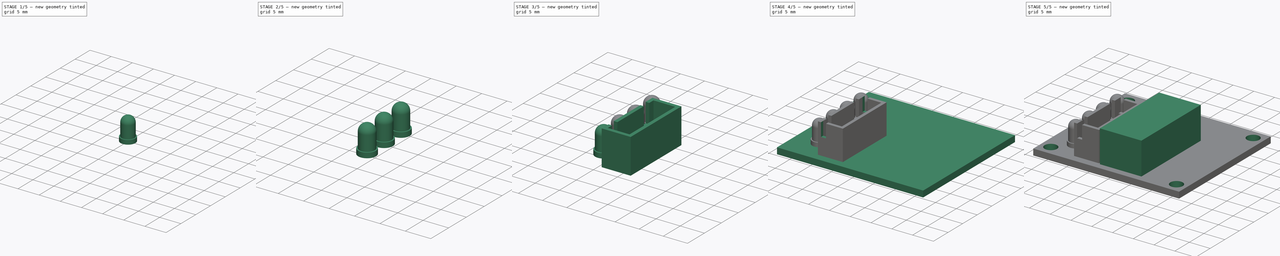
[diagram: build sequence overview — one tinted view per stage of 5, left to right]
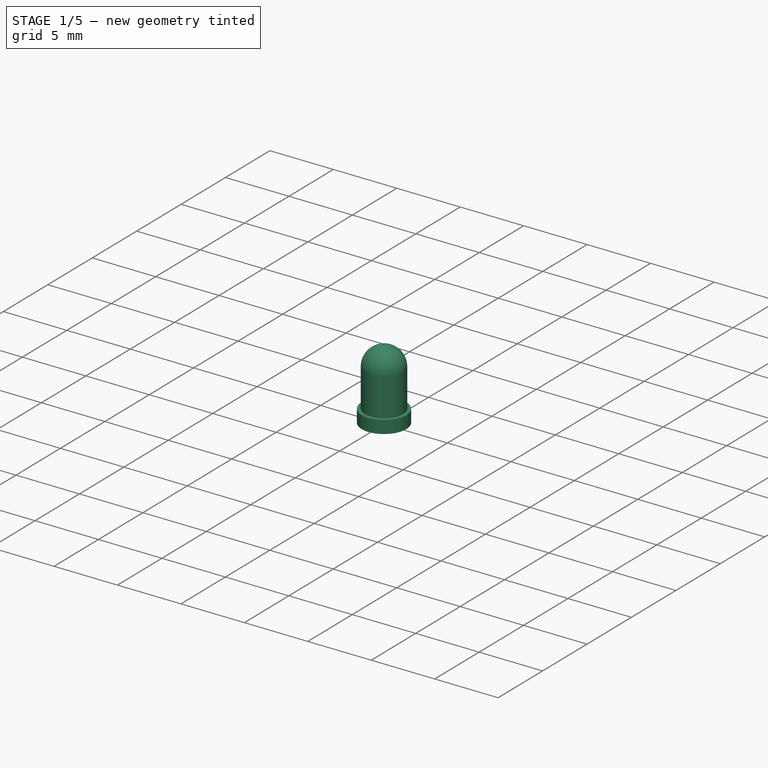
[diagram: stage 1 of 5 — iso view after this stage's code; geometry added in this stage tinted green]
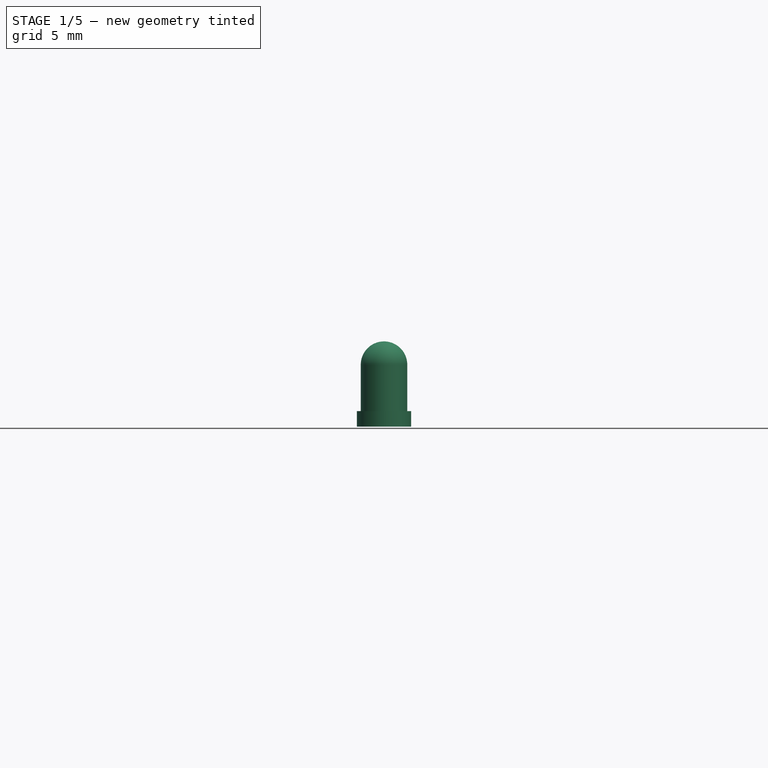
[diagram: stage 1 of 5 — front view after this stage's code; geometry added in this stage tinted green]
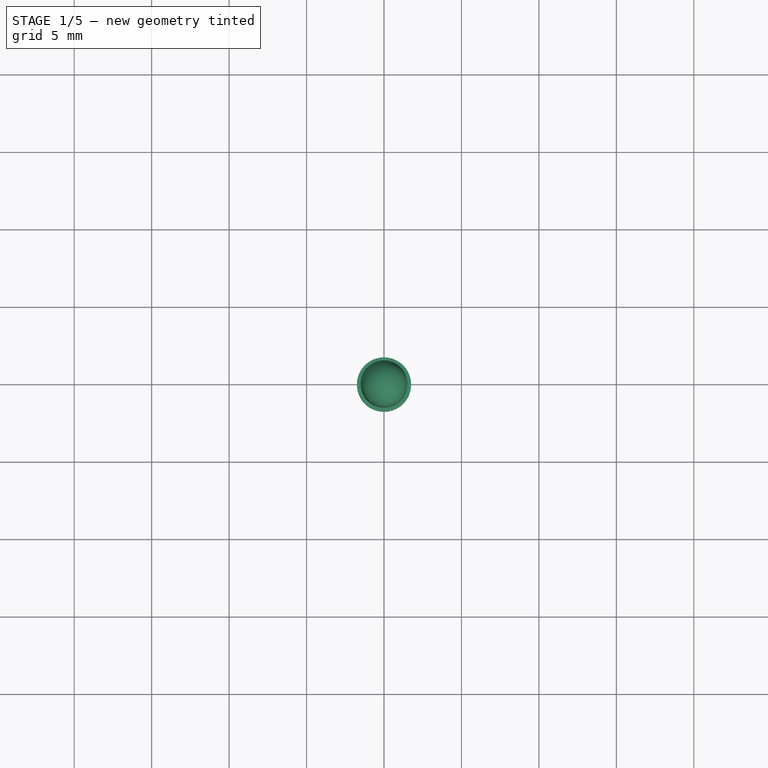
[diagram: stage 1 of 5 — top view after this stage's code; geometry added in this stage tinted green]
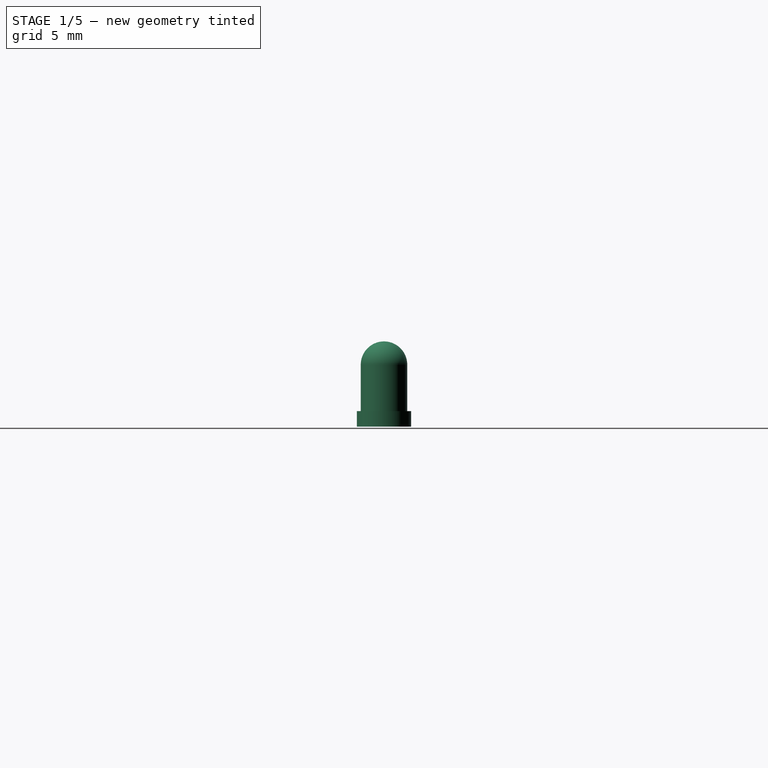
[diagram: stage 1 of 5 — right view after this stage's code; geometry added in this stage tinted green]
FCSTD DOCUMENT  (FreeCAD 0.14R3692 (Git))
Label: driver-board
License: The MIT License
LicenseURL: http://opensource.org/licenses/MIT
objects: Part::FeaturePython×6, Sketcher::SketchObject×4, PartDesign::Pocket×3, Part::Box×2, Part::Cylinder×2, Part::MultiFuse×2, PartDesign::Pad×1, Part::Sphere×1, Part::Thickness×1
note: 26 computed .brp shape members not serialized (recipe doc carries the construction recipe); baked Part::Feature solids carry a one-line shape summary decoded from their .brp

FEATURE [Part::Cylinder] Cylinder  label="led-body"
  Angle = 360
  Height = 4
  Radius = 1.5
FEATURE [Part::Cylinder] Cylinder001  label="led-base"
  Angle = 360
  Height = 1
  Radius = 1.75
FEATURE [Part::Sphere] Sphere  label="led-head"
  Angle1 = -90
  Angle2 = 90
  Angle3 = 360
  Placement = pos=(0,0,4) rot=(0,0,1;0rad)
  Radius = 1.5
FEATURE [Part::MultiFuse] Fusion  label="led"
  Shapes = -> [Sphere,Cylinder001,Cylinder]
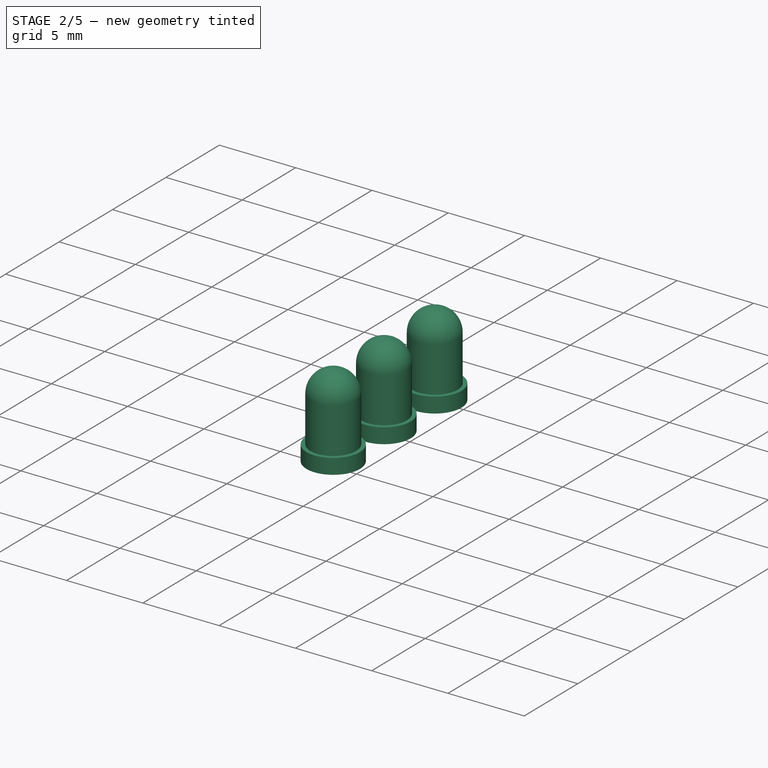
[diagram: stage 2 of 5 — iso view after this stage's code; geometry added in this stage tinted green]
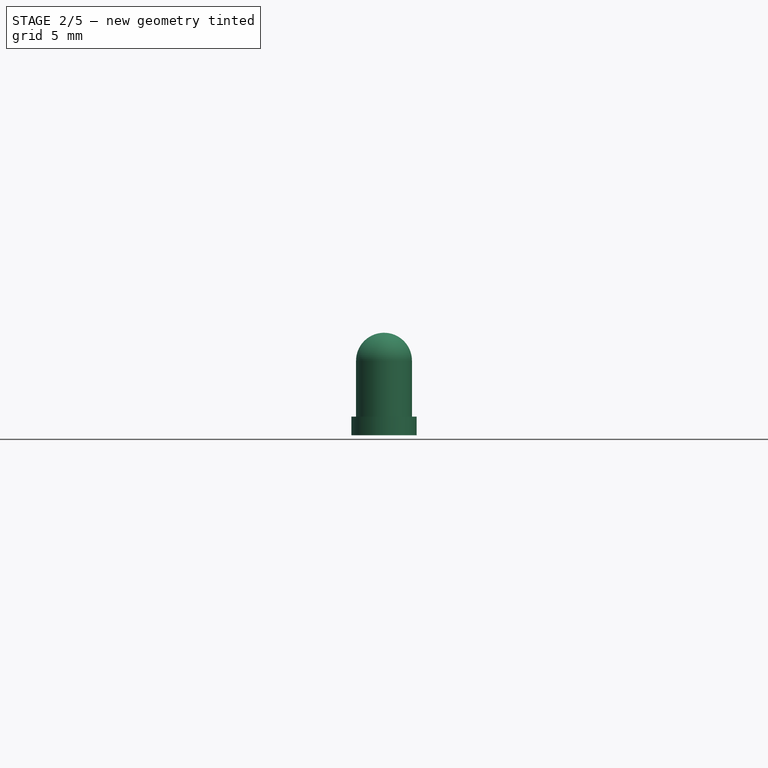
[diagram: stage 2 of 5 — front view after this stage's code; geometry added in this stage tinted green]
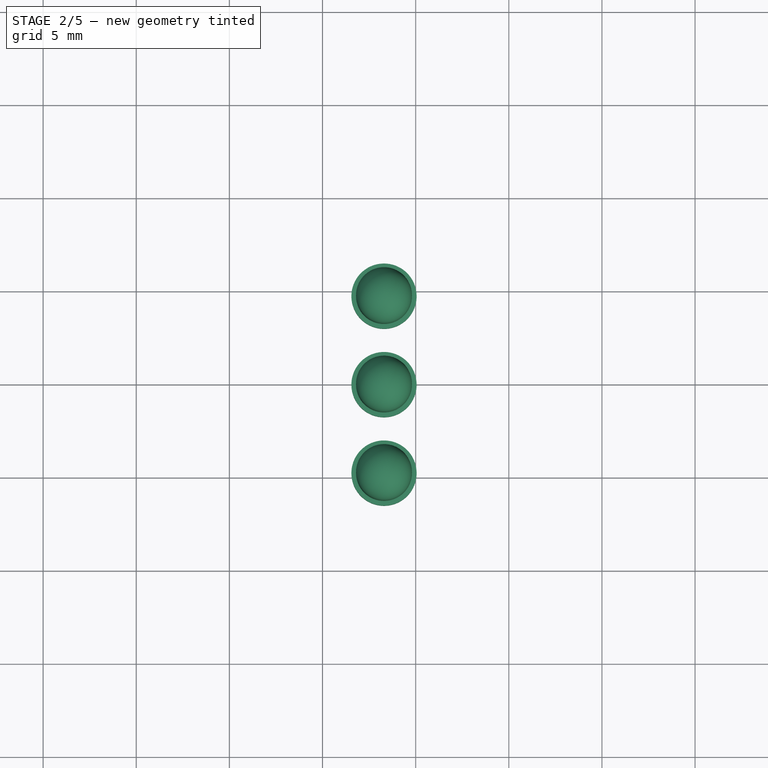
[diagram: stage 2 of 5 — top view after this stage's code; geometry added in this stage tinted green]
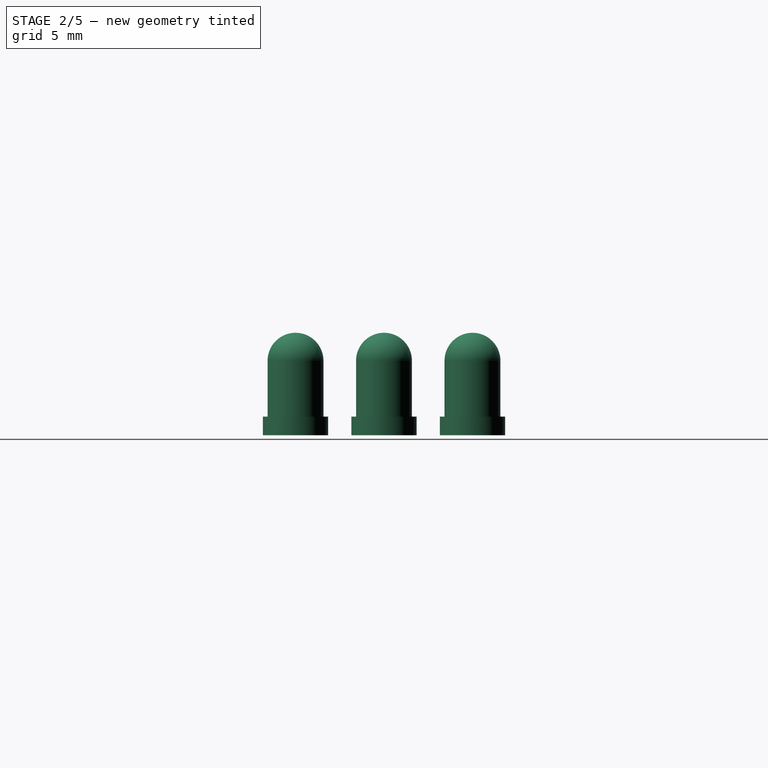
[diagram: stage 2 of 5 — right view after this stage's code; geometry added in this stage tinted green]
FEATURE [Part::FeaturePython] Clone003  label="led-2"  # Draft clone (typed FeaturePython)
  Objects = -> [Fusion]
  Placement = pos=(-11.7,-4.75,1.5) rot=(0,0,1;0rad)
  Scale = (1,1,1)
FEATURE [Part::FeaturePython] Clone004  label="led-3"  # Draft clone (typed FeaturePython)
  Objects = -> [Fusion]
  Placement = pos=(-11.7,0,1.5) rot=(0,0,1;0rad)
  Scale = (1,1,1)
FEATURE [Part::FeaturePython] Clone005  label="led-4"  # Draft clone (typed FeaturePython)
  Objects = -> [Fusion]
  Placement = pos=(-11.7,4.75,1.5) rot=(0,0,1;0rad)
  Scale = (1,1,1)
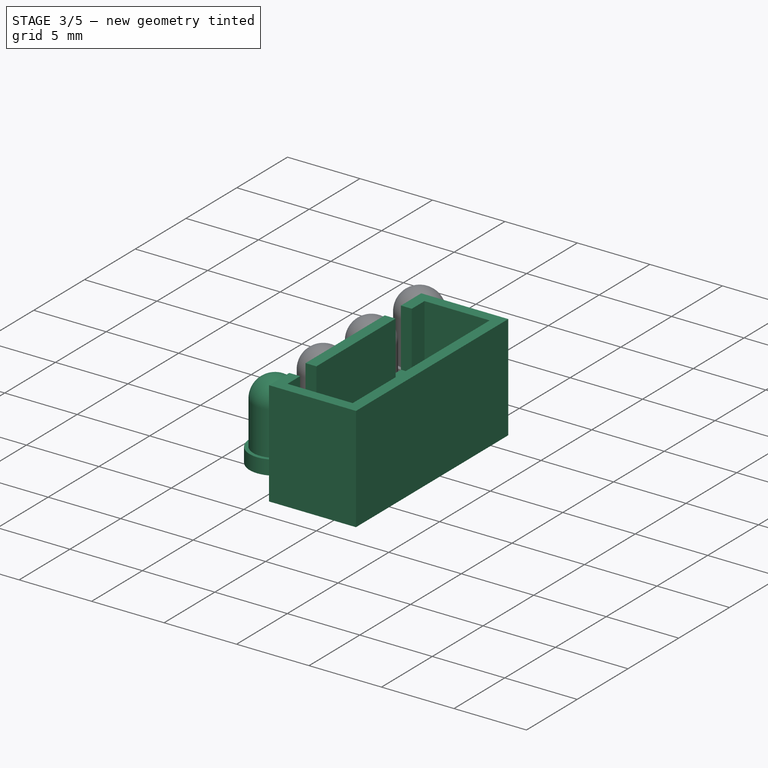
[diagram: stage 3 of 5 — iso view after this stage's code; geometry added in this stage tinted green]
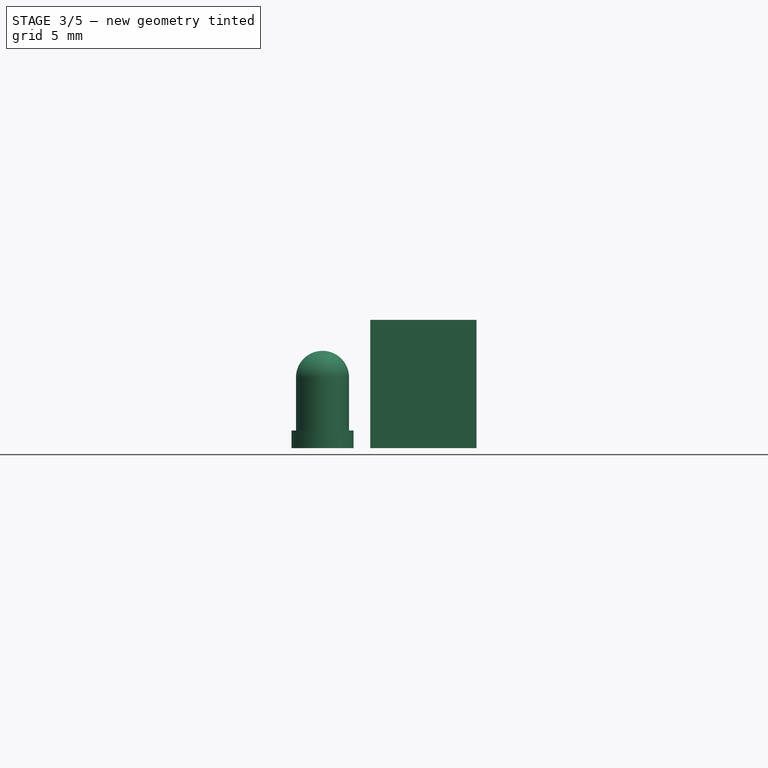
[diagram: stage 3 of 5 — front view after this stage's code; geometry added in this stage tinted green]
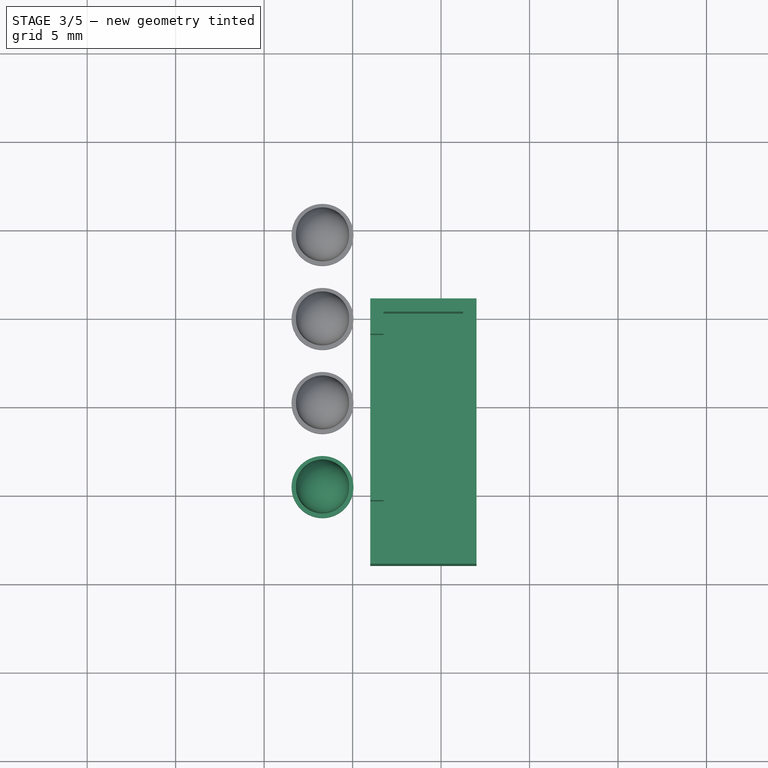
[diagram: stage 3 of 5 — top view after this stage's code; geometry added in this stage tinted green]
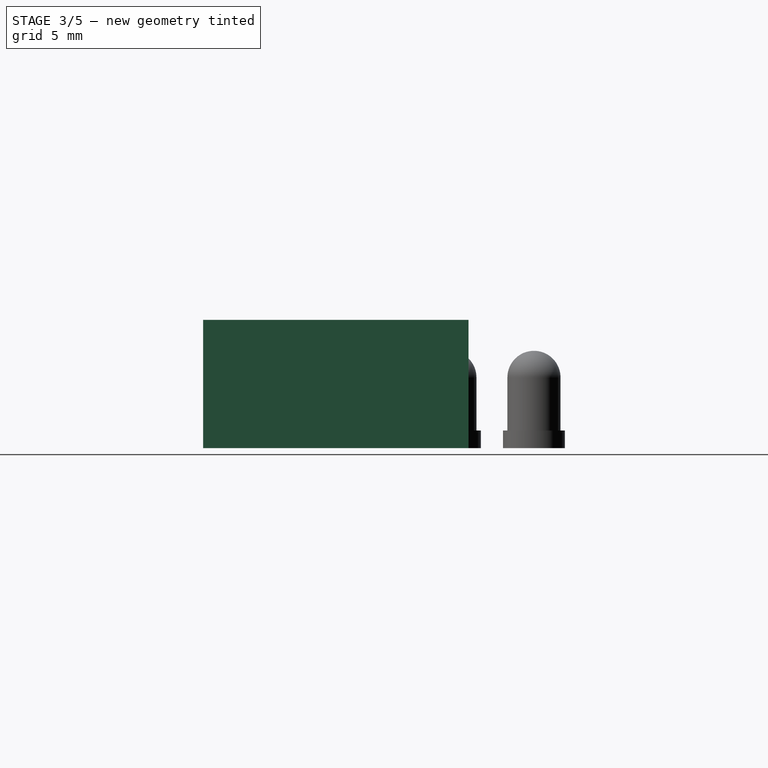
[diagram: stage 3 of 5 — right view after this stage's code; geometry added in this stage tinted green]
FEATURE [Part::Box] Box001  label="connector-cube"
  Height = 6.5
  Length = 4.5
  Placement = pos=(-8.25,-13.2,2.25) rot=(0,0,1;0rad)
  Width = 13.5
FEATURE [Part::Thickness] Thickness  label="connector-thickness"
  Faces = -> Box001 [Face6]
  Intersection = false
  Join = 2
  Mode = 0
  SelfIntersection = false
  Value = 0.75
FEATURE [Sketcher::SketchObject] Sketch002  label="connector-front-sketch"
  ExternalGeometry = -> [Thickness]
  Placement = pos=(-9,0,0) rot=(0.57735,-0.57735,-0.57735;2.0944rad)
  Support = -> Thickness [Face7]
  sketch-geometry (8):
    g0: LineSegment StartX=0.95 StartY=8.75 StartZ=0 EndX=2.55 EndY=8.75 EndZ=0
    g1: LineSegment StartX=2.55 StartY=8.75 StartZ=0 EndX=2.55 EndY=4.75 EndZ=0
    g2: LineSegment StartX=2.55 StartY=4.75 StartZ=0 EndX=0.95 EndY=4.75 EndZ=0
    g3: LineSegment StartX=0.95 StartY=4.75 StartZ=0 EndX=0.95 EndY=8.75 EndZ=0
    g4: LineSegment StartX=10.35 StartY=8.75 StartZ=0 EndX=11.95 EndY=8.75 EndZ=0
    g5: LineSegment StartX=11.95 StartY=8.75 StartZ=0 EndX=11.95 EndY=4.75 EndZ=0
    g6: LineSegment StartX=11.95 StartY=4.75 StartZ=0 EndX=10.35 EndY=4.75 EndZ=0
    g7: LineSegment StartX=10.35 StartY=4.75 StartZ=0 EndX=10.35 EndY=8.75 EndZ=0
  constraints (24):
    c: Coincident(g0,g1)
    c: Coincident(g1,g2)
    c: Coincident(g2,g3)
    c: Coincident(g3,g0)
    c: Horizontal(g0)
    c: Horizontal(g2)
    c: Vertical(g1)
    c: Vertical(g3)
    c: DistanceX(g2) = -1.6
    c: PointOnObject(g0,g-3)
    c: DistanceX(g-3,g0) = 2
    c: DistanceY(g3) = 4
    c: Coincident(g4,g5)
    c: Coincident(g5,g6)
    c: Coincident(g6,g7)
    c: Coincident(g7,g4)
    c: Horizontal(g4)
    c: Horizontal(g6)
    c: Vertical(g5)
    c: Vertical(g7)
    c: PointOnObject(g4,g-3)
    c: Equal(g5,g3)
    c: Equal(g2,g6)
    c: DistanceX(g4,g-3) = 2
FEATURE [PartDesign::Pocket] Pocket001  label="connector-front-pocket"
  Length = 5
  Sketch = -> Sketch002
  Type = 2
FEATURE [Part::FeaturePython] Clone002  label="led-1"  # Draft clone (typed FeaturePython)
  Objects = -> [Fusion]
  Placement = pos=(-11.7,-9.5,1.5) rot=(0,0,1;0rad)
  Scale = (1,1,1)
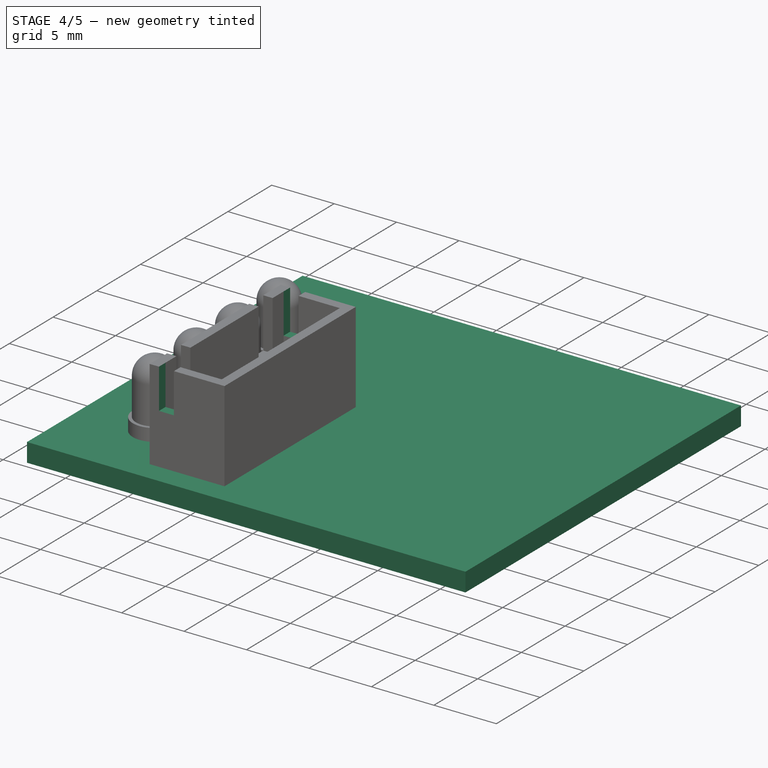
[diagram: stage 4 of 5 — iso view after this stage's code; geometry added in this stage tinted green]
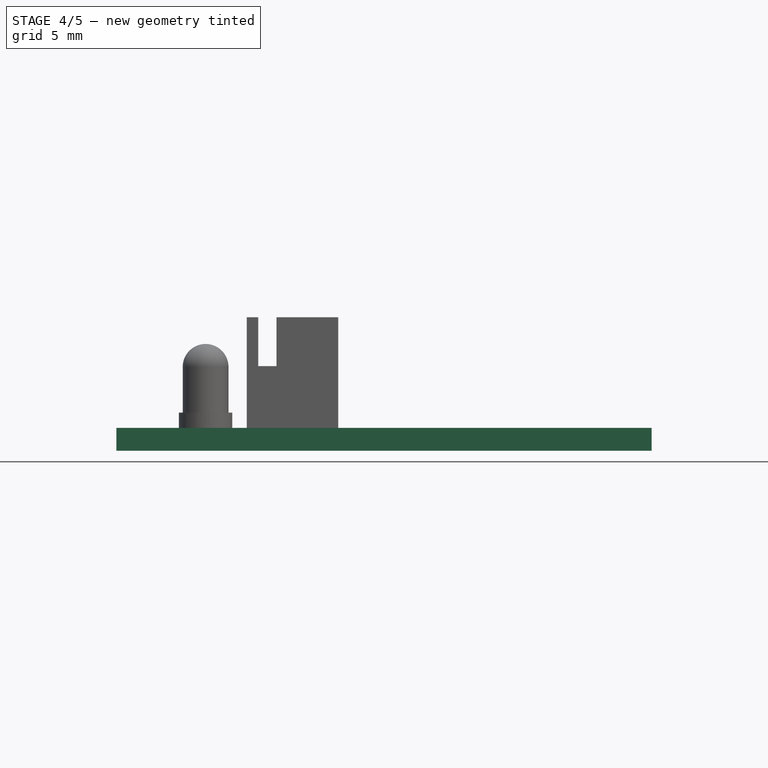
[diagram: stage 4 of 5 — front view after this stage's code; geometry added in this stage tinted green]
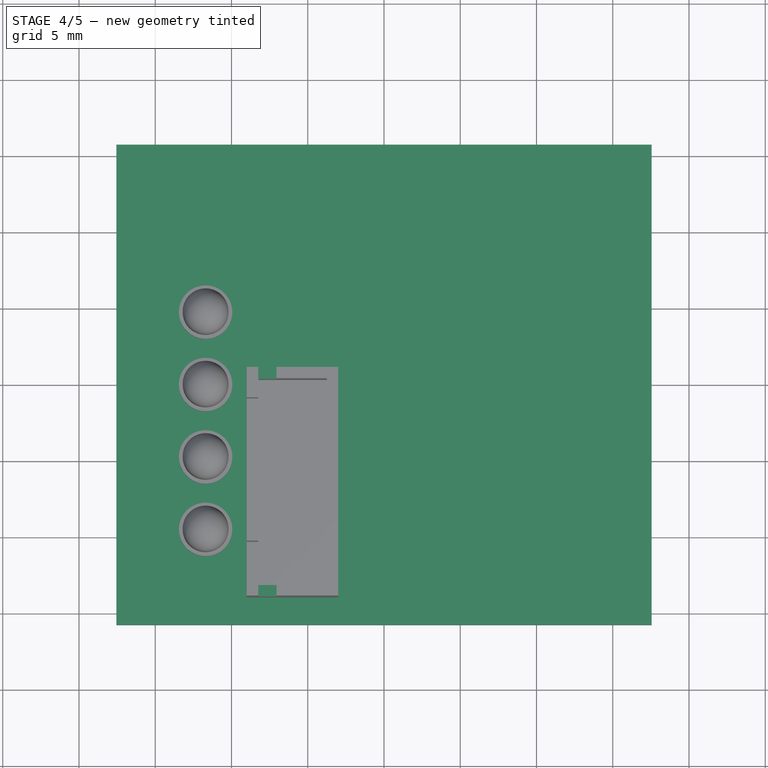
[diagram: stage 4 of 5 — top view after this stage's code; geometry added in this stage tinted green]
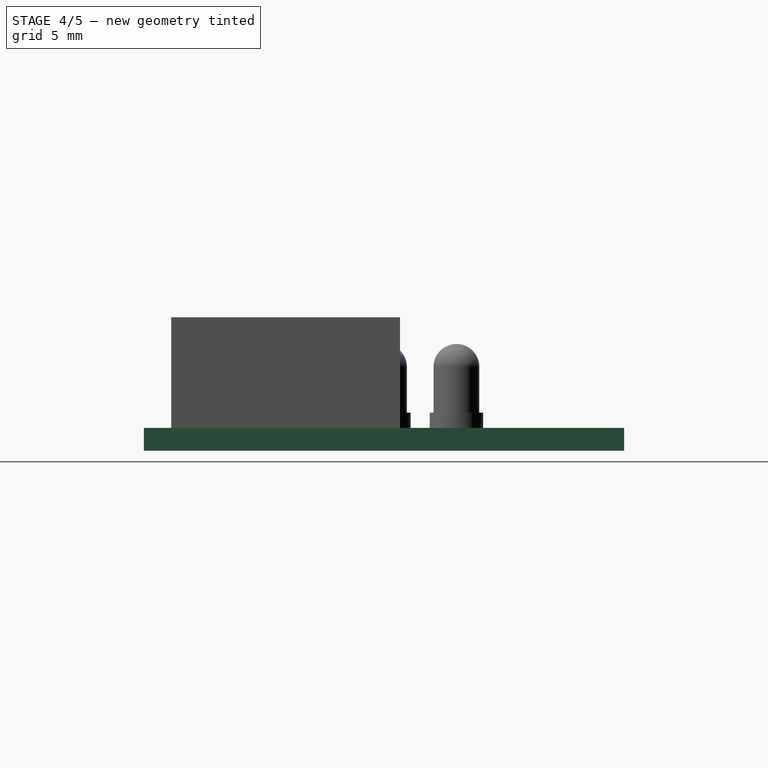
[diagram: stage 4 of 5 — right view after this stage's code; geometry added in this stage tinted green]
FEATURE [Sketcher::SketchObject] Sketch  label="pcb-sketch"
  sketch-geometry (4):
    g0: LineSegment StartX=-17.55 StartY=15.75 StartZ=0 EndX=17.55 EndY=15.75 EndZ=0
    g1: LineSegment StartX=17.55 StartY=15.75 StartZ=0 EndX=17.55 EndY=-15.75 EndZ=0
    g2: LineSegment StartX=17.55 StartY=-15.75 StartZ=0 EndX=-17.55 EndY=-15.75 EndZ=0
    g3: LineSegment StartX=-17.55 StartY=-15.75 StartZ=0 EndX=-17.55 EndY=15.75 EndZ=0
  constraints (12):
    c: Coincident(g0,g1)
    c: Coincident(g1,g2)
    c: Coincident(g2,g3)
    c: Coincident(g3,g0)
    c: Horizontal(g0)
    c: Horizontal(g2)
    c: Vertical(g1)
    c: Vertical(g3)
    c: Symmetric(g0,g1,g-1)
    c: Symmetric(g0,g2,g-1)
    c: DistanceY(g3) = 31.5
    c: DistanceX(g0) = 35.1
FEATURE [PartDesign::Pad] Pad  label="pcb-pad"
  Length = 1.5
  Length2 = 100
  Sketch = -> Sketch
  Type = 0
FEATURE [Sketcher::SketchObject] Sketch003  label="connector-side-sketch"
  ExternalGeometry = -> [Pocket001]
  Placement = pos=(0,-13.95,0) rot=(1,0,0;1.5708rad)
  Support = -> Pocket001 [Face8]
  sketch-geometry (4):
    g0: LineSegment StartX=-8.25 StartY=8.75 StartZ=0 EndX=-7.05 EndY=8.75 EndZ=0
    g1: LineSegment StartX=-7.05 StartY=8.75 StartZ=0 EndX=-7.05 EndY=5.55 EndZ=0
    g2: LineSegment StartX=-7.05 StartY=5.55 StartZ=0 EndX=-8.25 EndY=5.55 EndZ=0
    g3: LineSegment StartX=-8.25 StartY=5.55 StartZ=0 EndX=-8.25 EndY=8.75 EndZ=0
  constraints (11):
    c: Coincident(g0,g1)
    c: Coincident(g1,g2)
    c: Coincident(g2,g3)
    c: Coincident(g3,g0)
    c: Horizontal(g0)
    c: Horizontal(g2)
    c: Vertical(g1)
    c: Vertical(g3)
    c: Coincident(g0,g-3)
    c: DistanceY(g3) = 3.2
    c: DistanceX(g2) = -1.2
FEATURE [PartDesign::Pocket] Pocket002  label="connector-side-pocket"
  Length = 5
  Sketch = -> Sketch003
  Type = 1
FEATURE [Part::FeaturePython] Clone001  label="connector"  # Draft clone (typed FeaturePython)
  Objects = -> [Pocket002]
  Scale = (1,1,1)
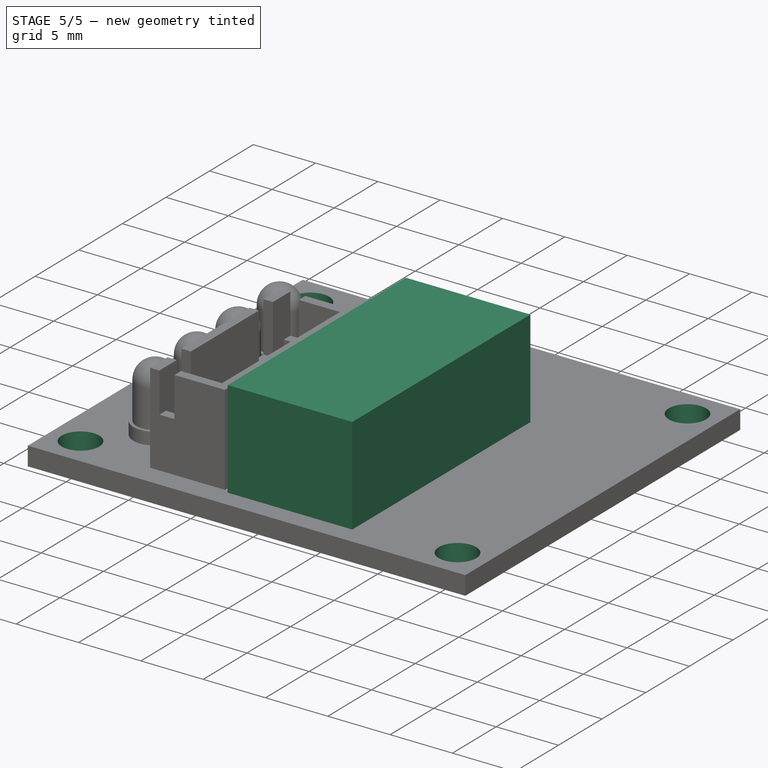
[diagram: stage 5 of 5 — iso view after this stage's code; geometry added in this stage tinted green]
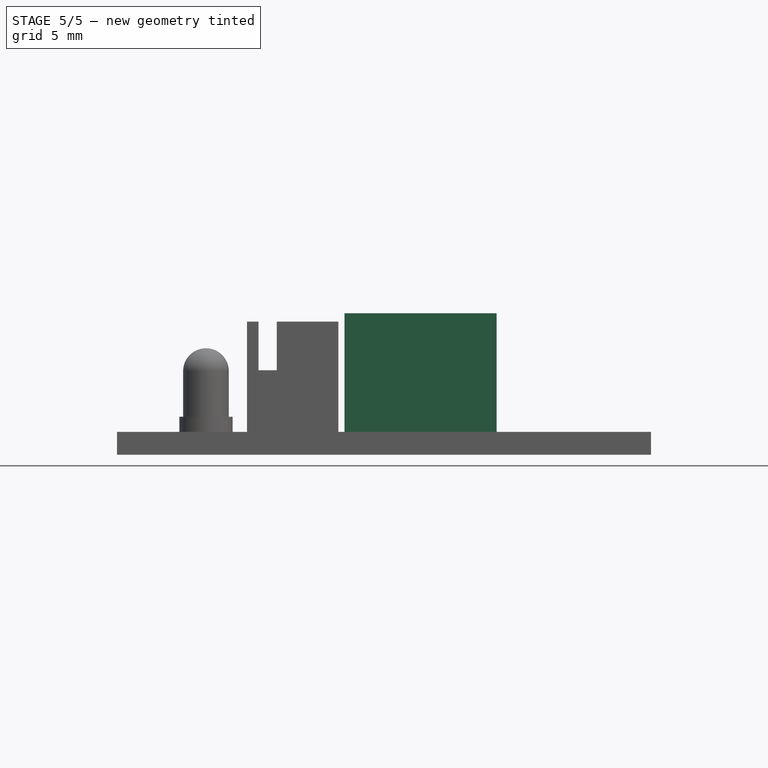
[diagram: stage 5 of 5 — front view after this stage's code; geometry added in this stage tinted green]
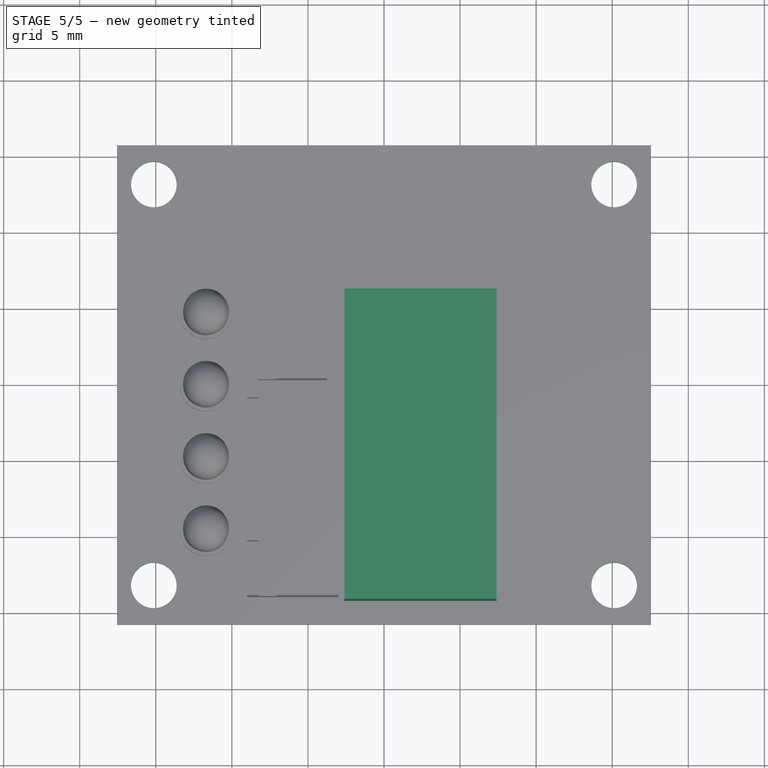
[diagram: stage 5 of 5 — top view after this stage's code; geometry added in this stage tinted green]
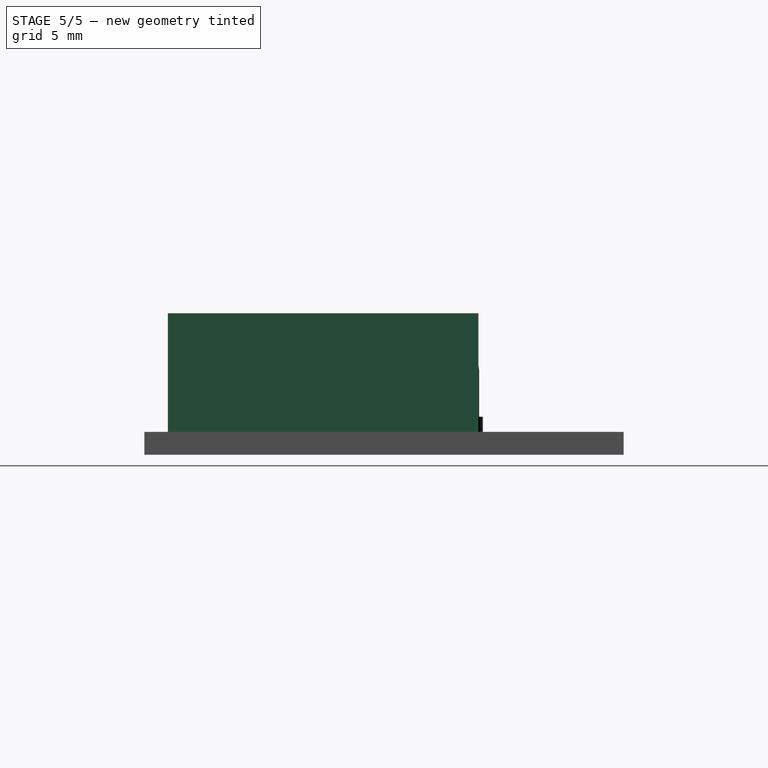
[diagram: stage 5 of 5 — right view after this stage's code; geometry added in this stage tinted green]
FEATURE [Sketcher::SketchObject] Sketch001  label="pcb-holes-sketch"
  Placement = pos=(0,0,1.5) rot=(0,0,1;0rad)
  Support = -> Pad [Face6]
  sketch-geometry (6):
    g0: Circle CenterX=-15.125 CenterY=13.175 CenterZ=0 NormalX=0 NormalY=0 NormalZ=1 Radius=1.5
    g1: Circle CenterX=-15.125 CenterY=-13.175 CenterZ=0 NormalX=0 NormalY=0 NormalZ=1 Radius=1.5
    g2: Circle CenterX=15.125 CenterY=-13.175 CenterZ=0 NormalX=0 NormalY=0 NormalZ=1 Radius=1.5
    g3: Circle CenterX=15.125 CenterY=13.175 CenterZ=0 NormalX=0 NormalY=0 NormalZ=1 Radius=1.5
    g4: LineSegment [constr] StartX=-15.125 StartY=13.175 StartZ=0 EndX=15.125 EndY=13.175 EndZ=0
    g5: LineSegment [constr] StartX=-15.125 StartY=13.175 StartZ=0 EndX=-15.125 EndY=-13.175 EndZ=0
  constraints (14):
    c: Symmetric(g3,g1,g-1)
    c: Symmetric(g0,g2,g-1)
    c: DistanceY(g2,g3) = 26.35
    c: DistanceX(g0,g3) = 30.25
    c: Coincident(g4,g0)
    c: Coincident(g4,g3)
    c: Horizontal(g4)
    c: Coincident(g5,g1)
    c: Coincident(g5,g0)
    c: Vertical(g5)
    c: Radius(g0) = 1.5
    c: Equal(g0,g3)
    c: Equal(g3,g2)
    c: Equal(g2,g1)
FEATURE [PartDesign::Pocket] Pocket  label="pcb-holes-pocket"
  Length = 5
  Sketch = -> Sketch001
  Type = 1
FEATURE [Part::Box] Box  label="uln2003"
  Height = 7.8
  Length = 10
  Placement = pos=(-2.6,-14.2,1.49939) rot=(0,0,1;0rad)
  Width = 20.4
FEATURE [Part::FeaturePython] Clone  label="pcb"  # Draft clone (typed FeaturePython)
  Objects = -> [Pocket]
  Scale = (1,1,1)
FEATURE [Part::MultiFuse] Fusion001  label="driver-board"
  Shapes = -> [Box,Clone,Clone001,Clone002,Clone003,Clone004,Clone005]
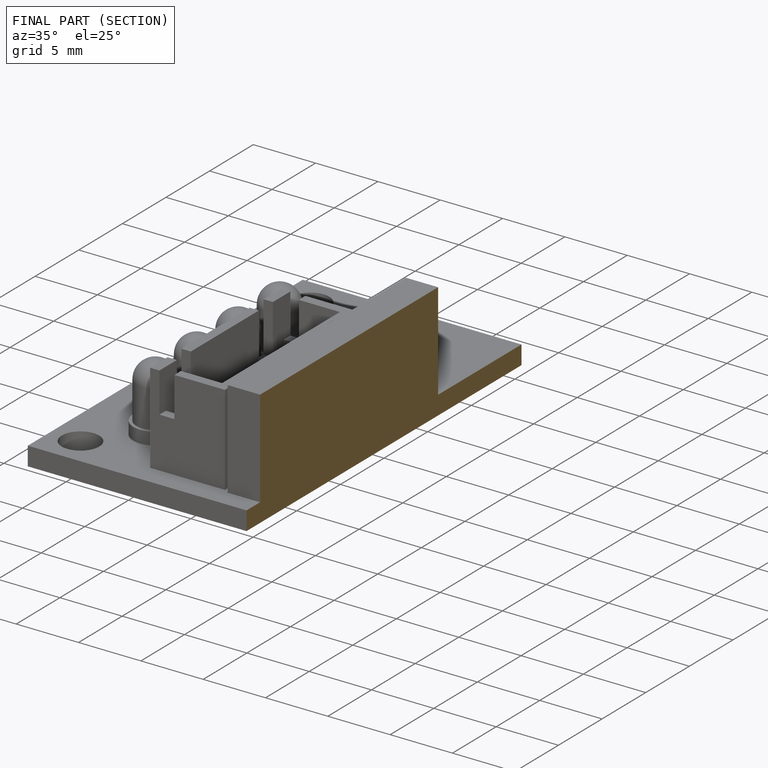
[diagram: finished part — half-section view (interior)]
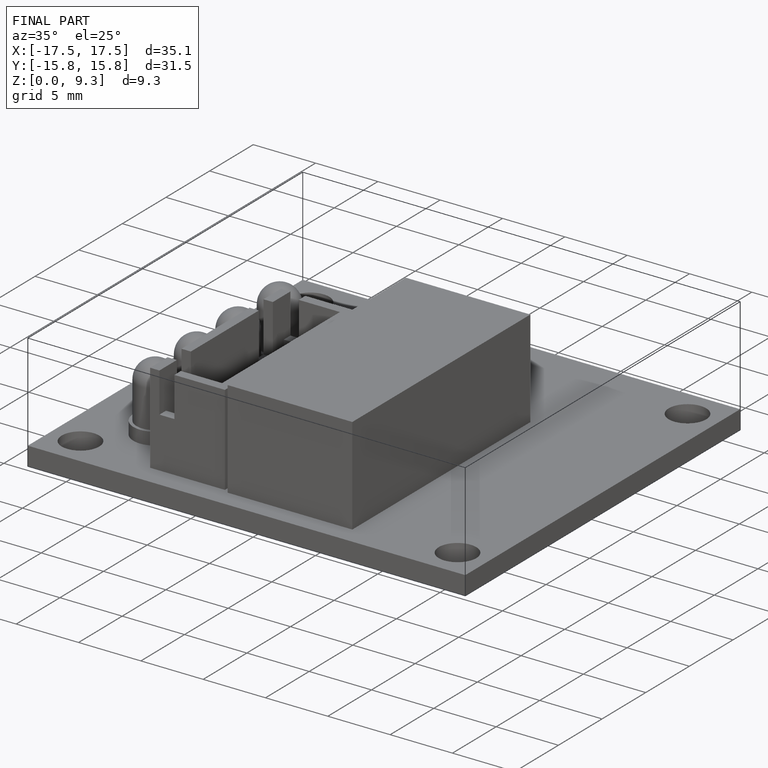
[diagram: finished part — iso view with bounding-box wireframe]
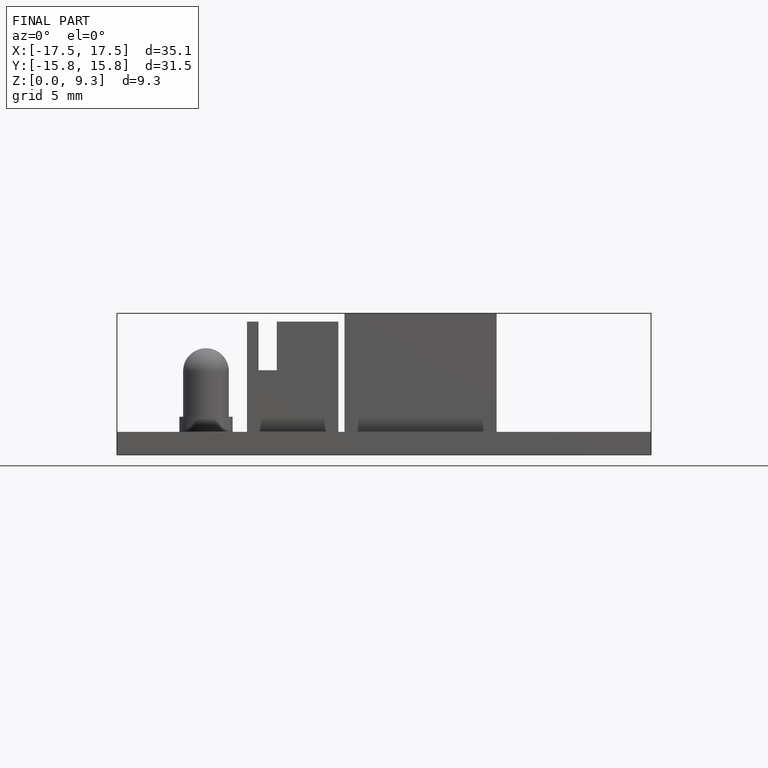
[diagram: finished part — front view with bounding-box wireframe]
